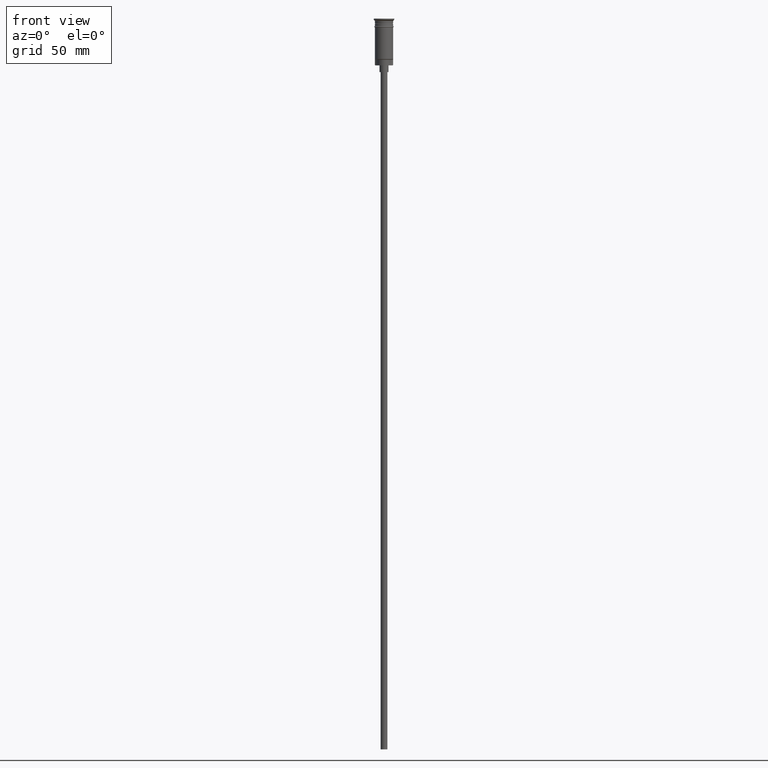
[diagram: clean part render]
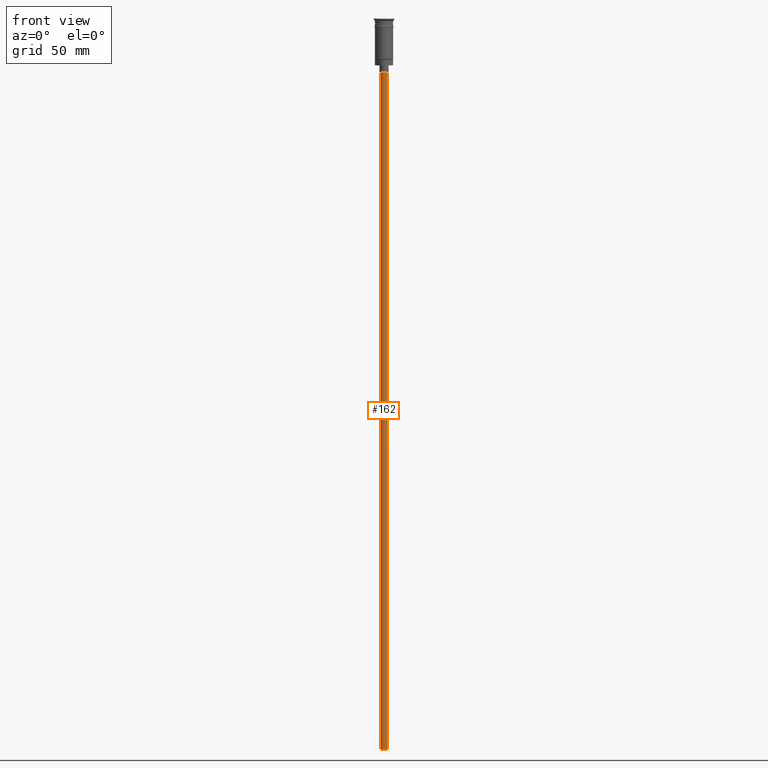
[diagram: same view with one face highlighted and labeled with its STEP entity id]
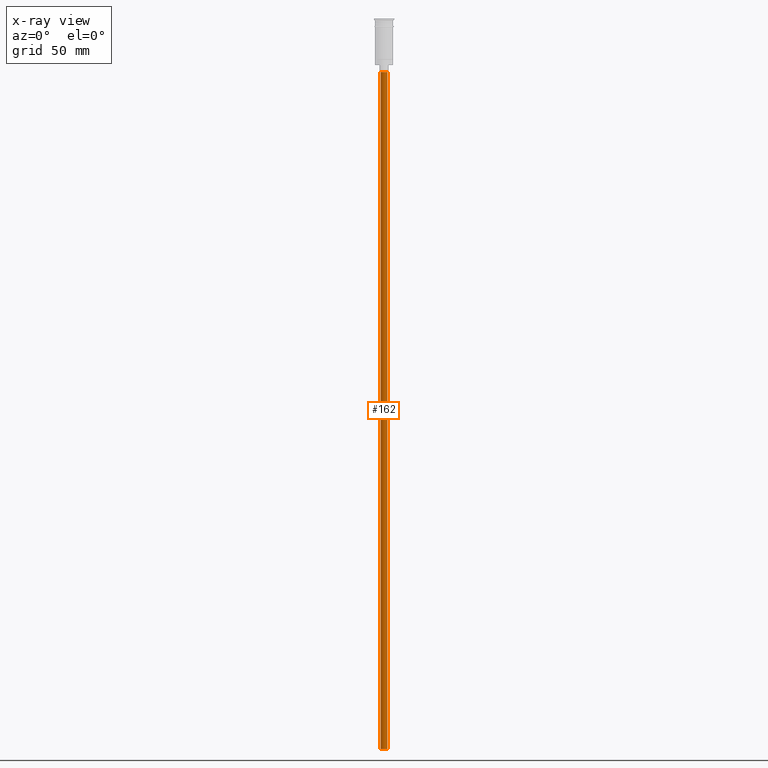
[diagram: x-ray of the same camera — body ghosted, the highlighted face saturated]
A machine part, front view. The second image highlights one B-rep face of the part: STEP entity #162.
The next image is the same camera in x-ray: the body ghosted, the highlighted face saturated — about 0% of this face is hidden behind the body in this view.
In plain terms, the highlighted cylindrical surface (edge-blend (fillet) strip) has radius 1.5 mm, axis along (-0, -0, 1).
Its self-contained STEP definition (entity closure, byte-faithful):
#8 = CARTESIAN_POINT ( 'NONE',  ( 0.000000000000000000, 0.000000000000000000, -320.5000000000000000 ) ) ;
#43 = ORIENTED_EDGE ( 'NONE', *, *, #458, .T. ) ;
#94 = CYLINDRICAL_SURFACE ( 'NONE', #343, 1.500000000000000222 ) ;
#112 = EDGE_CURVE ( 'NONE', #1454, #1603, #1352, .T. ) ;
#162 = ADVANCED_FACE ( 'NONE', ( #852 ), #94, .T. ) ;
#173 = CARTESIAN_POINT ( 'NONE',  ( 0.000000000000000000, 0.000000000000000000, -23.49999999999999645 ) ) ;
#188 = CIRCLE ( 'NONE', #392, 1.500000000000000222 ) ;
#248 = VERTEX_POINT ( 'NONE', #1030 ) ;
#256 = DIRECTION ( 'NONE',  ( 0.000000000000000000, 0.000000000000000000, -1.000000000000000000 ) ) ;
#343 = AXIS2_PLACEMENT_3D ( 'NONE', #1086, #369, #1590 ) ;
#369 = DIRECTION ( 'NONE',  ( -0.000000000000000000, -0.000000000000000000, 1.000000000000000000 ) ) ;
#392 = AXIS2_PLACEMENT_3D ( 'NONE', #173, #926, #1417 ) ;
#442 = LINE ( 'NONE', #591, #871 ) ;
#445 = DIRECTION ( 'NONE',  ( -0.000000000000000000, -0.000000000000000000, 1.000000000000000000 ) ) ;
#458 = EDGE_CURVE ( 'NONE', #1454, #478, #1098, .T. ) ;
#478 = VERTEX_POINT ( 'NONE', #566 ) ;
#566 = CARTESIAN_POINT ( 'NONE',  ( 1.500000000000000222, 0.000000000000000000, -23.49999999999999645 ) ) ;
#591 = CARTESIAN_POINT ( 'NONE',  ( -1.500000000000000222, 1.836970198721030181E-16, -320.5000000000000000 ) ) ;
#675 = EDGE_CURVE ( 'NONE', #1603, #248, #442, .T. ) ;
#789 = AXIS2_PLACEMENT_3D ( 'NONE', #8, #256, #1496 ) ;
#852 = FACE_OUTER_BOUND ( 'NONE', #1375, .T. ) ;
#871 = VECTOR ( 'NONE', #1437, 1000.000000000000000 ) ;
#926 = DIRECTION ( 'NONE',  ( 0.000000000000000000, 0.000000000000000000, -1.000000000000000000 ) ) ;
#1003 = VECTOR ( 'NONE', #445, 1000.000000000000000 ) ;
#1007 = CARTESIAN_POINT ( 'NONE',  ( 1.500000000000000222, 0.000000000000000000, -320.5000000000000000 ) ) ;
#1030 = CARTESIAN_POINT ( 'NONE',  ( -1.500000000000000222, 1.836970198721030181E-16, -23.49999999999999645 ) ) ;
#1075 = CARTESIAN_POINT ( 'NONE',  ( 1.500000000000000222, 0.000000000000000000, -320.5000000000000000 ) ) ;
#1086 = CARTESIAN_POINT ( 'NONE',  ( 0.000000000000000000, 0.000000000000000000, -320.5000000000000000 ) ) ;
#1098 = LINE ( 'NONE', #1075, #1003 ) ;
#1169 = ORIENTED_EDGE ( 'NONE', *, *, #675, .F. ) ;
#1212 = ORIENTED_EDGE ( 'NONE', *, *, #112, .F. ) ;
#1348 = EDGE_CURVE ( 'NONE', #478, #248, #188, .T. ) ;
#1352 = CIRCLE ( 'NONE', #789, 1.500000000000000222 ) ;
#1375 = EDGE_LOOP ( 'NONE', ( #1169, #1212, #43, #1589 ) ) ;
#1417 = DIRECTION ( 'NONE',  ( -1.000000000000000000, 0.000000000000000000, 0.000000000000000000 ) ) ;
#1437 = DIRECTION ( 'NONE',  ( -0.000000000000000000, -0.000000000000000000, 1.000000000000000000 ) ) ;
#1454 = VERTEX_POINT ( 'NONE', #1007 ) ;
#1482 = CARTESIAN_POINT ( 'NONE',  ( -1.500000000000000222, 1.836970198721030181E-16, -320.5000000000000000 ) ) ;
#1496 = DIRECTION ( 'NONE',  ( -1.000000000000000000, 0.000000000000000000, 0.000000000000000000 ) ) ;
#1589 = ORIENTED_EDGE ( 'NONE', *, *, #1348, .T. ) ;
#1590 = DIRECTION ( 'NONE',  ( 1.000000000000000000, 0.000000000000000000, 0.000000000000000000 ) ) ;
#1603 = VERTEX_POINT ( 'NONE', #1482 ) ;